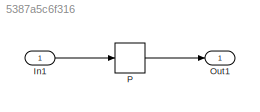
MODEL slx_5387a5c6f316
KIND model
CONFIG AbsTol = auto
CONFIG EnableMultiTasking = off
CONFIG FixedStep = auto
CONFIG MaxStep = auto
CONFIG MinStep = auto
CONFIG RelTol = 1e-3
CONFIG SampleTimeConstraint = Unconstrained
CONFIG Solver = FixedStepDiscrete
CONFIG SolverName = FixedStepDiscrete
CONFIG StartTime = 0.0
CONFIG StopTime = 10.0
BLOCK [Inport] In1
  IconDisplay = Port number
  OutDataTypeStr = uint16
  PortDimensions = 2
BLOCK [Outport] Out1
  IconDisplay = Port number
BLOCK [Lookup_n-D] P
  BreakpointsForDimension1 = [34.494904844852;48.3999097559571;79.9097680678766]
  BreakpointsForDimension1DataTypeStr = double
  BreakpointsForDimension2 = [10.8395620145171;18.2080784318476;27.6600168500413;44.9819539247782;63.4709930223771]
  BreakpointsForDimension2DataTypeStr = double
  BreakpointsForDimension3 = [5, 7]
  ExtrapMethod = Clip
  FractionDataTypeStr = single
  IntermediateResultsDataTypeStr = uint8
  InternalRulePriority = Speed
  OutDataTypeStr = Inherit: Inherit from 'Table data'
  Ports = [1, 1]
  RndMeth = Round
  SaturateOnIntegerOverflow = on
  Table = [95.0214686089096 85.1048093568085 101.649182747305 92.1817017361234 76.9535705228612;79.3488659574254 61.617376174588 57.1021751312015 50.4295966647662 2.36128502965673;92.4680594528828 72.8979762544165 35.0540530465358 49.382428646426 87.7347144685192]
  UseLastTableValue = on
  UseOneInputPortForAllInputData = on
LINE In1:1 -> P:1
LINE P:1 -> Out1:1
